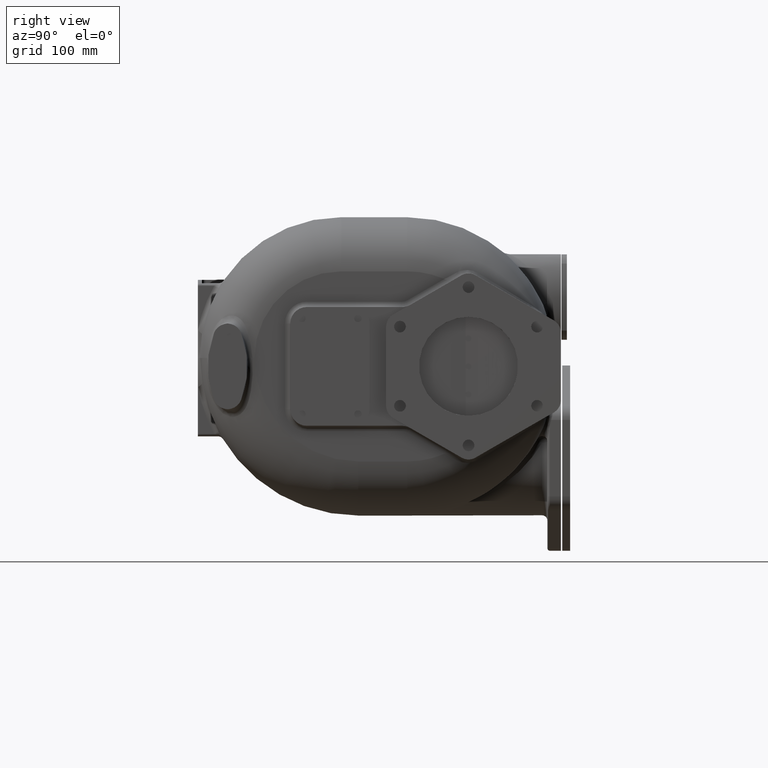
[diagram: clean part render]
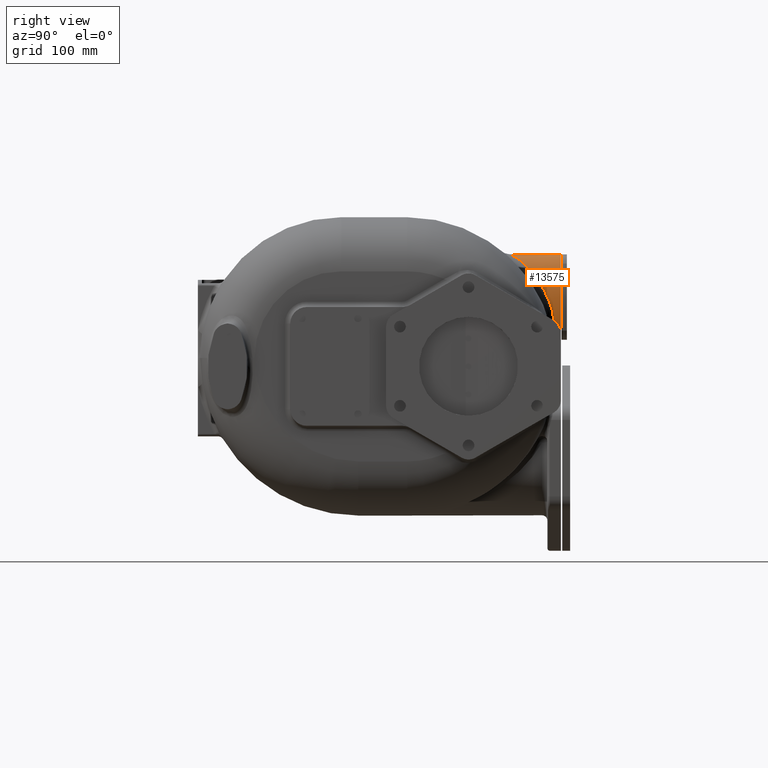
[diagram: same view with one face highlighted and labeled with its STEP entity id]
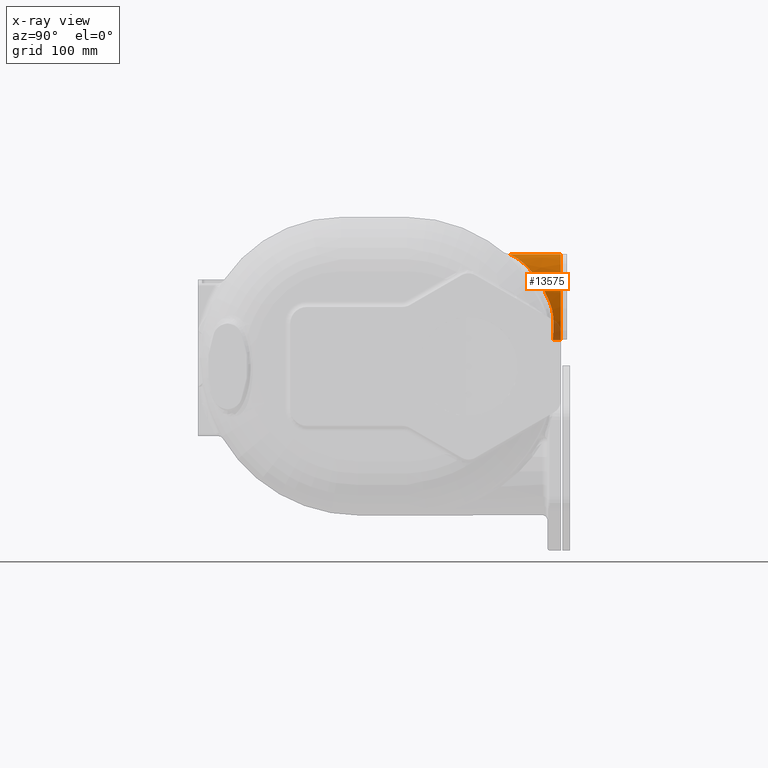
[diagram: x-ray of the same camera — body ghosted, the highlighted face saturated]
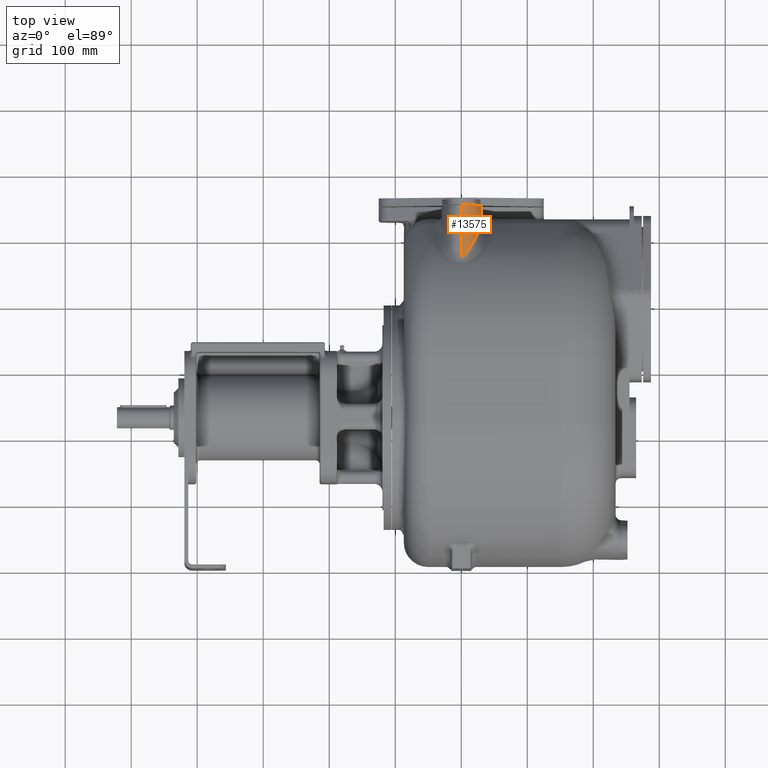
[diagram: same view with one face highlighted and labeled with its STEP entity id]
A machine part, right view. The second image highlights one B-rep face of the part: STEP entity #13575.
The next image is the same camera in x-ray: the body ghosted, the highlighted face saturated — about 8% of this face is hidden behind the body in this view.
A second angle (top view) of the same face is appended — the face is thin or edge-on in the first view.
In plain terms, the highlighted face is a SurfaceOfExtrusion surface.
Its self-contained STEP definition (entity closure, byte-faithful):
#4447=CARTESIAN_POINT('',(0.E0,4.718158125682E2,1.44E2));
#4448=CARTESIAN_POINT('',(6.756376490216E-2,4.718158124369E2,1.439999999580E2));
#4449=CARTESIAN_POINT('',(2.033282008203E-1,4.718183591415E2,1.439990104675E2));
#4450=CARTESIAN_POINT('',(4.087325313919E-1,4.718300258392E2,1.439944799828E2));
#4451=CARTESIAN_POINT('',(6.163152491117E-1,4.718497493316E2,1.439868067539E2));
#4452=CARTESIAN_POINT('',(8.262905902938E-1,4.718778232809E2,1.439758781207E2));
#4453=CARTESIAN_POINT('',(1.038914190687E0,4.719145388330E2,1.439615640587E2));
#4454=CARTESIAN_POINT('',(1.254283946355E0,4.719601513360E2,1.439437316834E2));
#4455=CARTESIAN_POINT('',(1.472931348248E0,4.720151474435E2,1.439221967651E2));
#4456=CARTESIAN_POINT('',(1.695882835025E0,4.720801205045E2,1.438966749751E2));
#4457=CARTESIAN_POINT('',(1.923930446268E0,4.721557709223E2,1.438668420235E2));
#4458=CARTESIAN_POINT('',(2.157836521586E0,4.722430268834E2,1.438323212215E2));
#4459=CARTESIAN_POINT('',(2.398337469331E0,4.723427302015E2,1.437926781436E2));
#4460=CARTESIAN_POINT('',(2.645974875746E0,4.724558786971E2,1.437474565674E2));
#4461=CARTESIAN_POINT('',(2.901901719361E0,4.725838807783E2,1.436960202802E2));
#4462=CARTESIAN_POINT('',(3.167129247236E0,4.727281065277E2,1.436376580232E2));
#4463=CARTESIAN_POINT('',(3.442583818511E0,4.728902269605E2,1.435715850213E2));
#4464=CARTESIAN_POINT('',(3.729776004711E0,4.730723492227E2,1.434967541310E2));
#4465=CARTESIAN_POINT('',(4.029790233032E0,4.732765063243E2,1.434120788311E2));
#4466=CARTESIAN_POINT('',(4.344064750916E0,4.735052664657E2,1.433162292795E2));
#4467=CARTESIAN_POINT('',(4.674498737615E0,4.737617729956E2,1.432075236196E2));
#4468=CARTESIAN_POINT('',(5.022469513653E0,4.740490370346E2,1.430842201951E2));
#4469=CARTESIAN_POINT('',(5.39010573E0,4.743709493209E2,1.429440549725E2));
#4470=CARTESIAN_POINT('',(5.779254023017E0,4.747316816197E2,1.427845368416E2));
#4471=CARTESIAN_POINT('',(6.191865904727E0,4.751354318372E2,1.426027806132E2));
#4472=CARTESIAN_POINT('',(6.629899995967E0,4.755872093604E2,1.423954885499E2));
#4473=CARTESIAN_POINT('',(7.095134040781E0,4.760915831038E2,1.421589857489E2));
#4474=CARTESIAN_POINT('',(7.588577578907E0,4.766529043852E2,1.418895423625E2));
#4475=CARTESIAN_POINT('',(8.111280677811E0,4.772752503646E2,1.415829477439E2));
#4476=CARTESIAN_POINT('',(8.662248745584E0,4.779603736378E2,1.412358349741E2));
#4477=CARTESIAN_POINT('',(9.240720849411E0,4.787097098602E2,1.408444874607E2));
#4478=CARTESIAN_POINT('',(9.843269483416E0,4.795208929066E2,1.404069668917E2));
#4479=CARTESIAN_POINT('',(1.046688365213E1,4.803910691562E2,1.399213402809E2));
#4480=CARTESIAN_POINT('',(1.110693313003E1,4.813146684813E2,1.393873601825E2));
#4481=CARTESIAN_POINT('',(1.175940214938E1,4.822858503643E2,1.388049684469E2));
#4482=CARTESIAN_POINT('',(1.242035771840E1,4.832986613217E2,1.381746770879E2));
#4483=CARTESIAN_POINT('',(1.308633664073E1,4.843470460115E2,1.374972412731E2));
#4484=CARTESIAN_POINT('',(1.375488888045E1,4.854266007572E2,1.367729332847E2));
#4485=CARTESIAN_POINT('',(1.442371071688E1,4.865328209830E2,1.360022884457E2));
#4486=CARTESIAN_POINT('',(1.509143832732E1,4.876629767070E2,1.351850886665E2));
#4487=CARTESIAN_POINT('',(1.575680893666E1,4.888145310750E2,1.343211467824E2));
#4488=CARTESIAN_POINT('',(1.641884251568E1,4.899855504336E2,1.334100378026E2));
#4489=CARTESIAN_POINT('',(1.707668383386E1,4.911745715744E2,1.324512165079E2));
#4490=CARTESIAN_POINT('',(1.772949143387E1,4.923800464947E2,1.314441411831E2));
#4491=CARTESIAN_POINT('',(1.837636730828E1,4.936007267032E2,1.303883845461E2));
#4492=CARTESIAN_POINT('',(1.901647620356E1,4.948352779599E2,1.292834375125E2));
#4493=CARTESIAN_POINT('',(1.964883643665E1,4.960823226504E2,1.281290621604E2));
#4494=CARTESIAN_POINT('',(2.027244258874E1,4.973404514980E2,1.269251256725E2));
#4495=CARTESIAN_POINT('',(2.088632258218E1,4.986082092988E2,1.256714804502E2));
#4496=CARTESIAN_POINT('',(2.148939542866E1,4.998841517251E2,1.243682615825E2));
#4497=CARTESIAN_POINT('',(2.208063228752E1,5.011667903455E2,1.230155769089E2));
#4498=CARTESIAN_POINT('',(2.265900047860E1,5.024546643327E2,1.216136047191E2));
#4499=CARTESIAN_POINT('',(2.322344092291E1,5.037463950407E2,1.201626627410E2));
#4500=CARTESIAN_POINT('',(2.377294556523E1,5.050405665333E2,1.186630039917E2));
#4501=CARTESIAN_POINT('',(2.430640589708E1,5.063356500185E2,1.171152237377E2));
#4502=CARTESIAN_POINT('',(2.482270037827E1,5.076301060293E2,1.155200863583E2));
#4503=CARTESIAN_POINT('',(2.532075187681E1,5.089223885229E2,1.138783400283E2));
#4504=CARTESIAN_POINT('',(2.579937914662E1,5.102107389476E2,1.121912284997E2));
#4505=CARTESIAN_POINT('',(2.625744725620E1,5.114934354830E2,1.104600658973E2));
#4506=CARTESIAN_POINT('',(2.669386624690E1,5.127687799047E2,1.086862147200E2));
#4507=CARTESIAN_POINT('',(2.710757434572E1,5.140351800847E2,1.068711474326E2));
#4508=CARTESIAN_POINT('',(2.749755358660E1,5.152910667053E2,1.050163767552E2));
#4509=CARTESIAN_POINT('',(2.786281806421E1,5.165349244508E2,1.031234923331E2));
#4510=CARTESIAN_POINT('',(2.820240821972E1,5.177653317568E2,1.011941974128E2));
#4511=CARTESIAN_POINT('',(2.851540809628E1,5.189809052060E2,9.923020452461E1));
#4512=CARTESIAN_POINT('',(2.880090550802E1,5.201802383633E2,9.723348763003E1));
#4513=CARTESIAN_POINT('',(2.905802320332E1,5.213619823549E2,9.520616178218E1));
#4514=CARTESIAN_POINT('',(2.928593341320E1,5.225248390608E2,9.315037489692E1));
#4515=CARTESIAN_POINT('',(2.948384217762E1,5.236675690440E2,9.106845413180E1));
#4516=CARTESIAN_POINT('',(2.965100810309E1,5.247890221709E2,8.896277273441E1));
#4517=CARTESIAN_POINT('',(2.978673317994E1,5.258880632554E2,8.683584541435E1));
#4518=CARTESIAN_POINT('',(2.989036135469E1,5.269635374986E2,8.469057196233E1));
#4519=CARTESIAN_POINT('',(2.996131337573E1,5.280143953685E2,8.252986471200E1));
#4520=CARTESIAN_POINT('',(2.999908061154E1,5.290396375581E2,8.035678830992E1));
#4521=CARTESIAN_POINT('',(3.000323419318E1,5.300383700543E2,7.817455549016E1));
#4522=CARTESIAN_POINT('',(2.997343347147E1,5.310097660367E2,7.598645565811E1));
#4523=CARTESIAN_POINT('',(2.990942190948E1,5.319531407630E2,7.379579073261E1));
#4524=CARTESIAN_POINT('',(2.984385310465E1,5.325628447371E2,7.233625141702E1));
#4525=CARTESIAN_POINT('',(2.980532409346E1,5.328629079811E2,7.160704387313E1));
#4527=DIRECTION('',(0.E0,-1.E0,0.E0));
#4528=VECTOR('',#4527,7.818418743185E1);
#4529=CARTESIAN_POINT('',(0.E0,5.5E2,1.44E2));
#4530=LINE('',#4529,#4528);
#4531=CARTESIAN_POINT('',(2.319218674766E1,5.388876650353E2,3.776938230357E1));
#4532=CARTESIAN_POINT('',(2.299738988521E1,5.388654287925E2,3.725499878757E1));
#4533=CARTESIAN_POINT('',(2.260480018373E1,5.388220768820E2,3.625053346129E1));
#4534=CARTESIAN_POINT('',(2.200902376357E1,5.387604548694E2,3.481586138864E1));
#4535=CARTESIAN_POINT('',(2.140780471819E1,5.387021913138E2,3.345086598165E1));
#4536=CARTESIAN_POINT('',(2.080273699607E1,5.386472577945E2,3.215377639563E1));
#4537=CARTESIAN_POINT('',(2.019537395823E1,5.385956195656E2,3.092284292193E1));
#4538=CARTESIAN_POINT('',(1.958726504705E1,5.385472206569E2,2.975639543103E1));
#4539=CARTESIAN_POINT('',(1.897967793570E1,5.385019824803E2,2.865231444673E1));
#4540=CARTESIAN_POINT('',(1.837363407062E1,5.384597976540E2,2.760820806244E1));
#4541=CARTESIAN_POINT('',(1.777010037703E1,5.384205558198E2,2.662177954427E1));
#4542=CARTESIAN_POINT('',(1.716991333245E1,5.383841317759E2,2.569069126513E1));
#4543=CARTESIAN_POINT('',(1.657381036117E1,5.383503931552E2,2.481262782899E1));
#4544=CARTESIAN_POINT('',(1.598242421378E1,5.383192076294E2,2.398529049440E1));
#4545=CARTESIAN_POINT('',(1.539630171191E1,5.382904277439E2,2.320642709342E1));
#4546=CARTESIAN_POINT('',(1.481587157085E1,5.382639142995E2,2.247379272520E1));
#4547=CARTESIAN_POINT('',(1.424148857933E1,5.382395239281E2,2.178521412717E1));
#4548=CARTESIAN_POINT('',(1.367345430502E1,5.382171110946E2,2.113860724672E1));
#4549=CARTESIAN_POINT('',(1.311193084737E1,5.381965428673E2,2.053188195003E1));
#4550=CARTESIAN_POINT('',(1.255707291433E1,5.381776798686E2,1.996309234773E1));
#4551=CARTESIAN_POINT('',(1.200894499046E1,5.381603949805E2,1.943033739563E1));
#4552=CARTESIAN_POINT('',(1.146750647710E1,5.381445664544E2,1.893175880884E1));
#4553=CARTESIAN_POINT('',(1.093278671384E1,5.381300753565E2,1.846569505413E1));
#4554=CARTESIAN_POINT('',(1.040466541653E1,5.381168175763E2,1.803047360700E1));
#4555=CARTESIAN_POINT('',(9.883030037384E0,5.381046881793E2,1.762455579330E1));
#4556=CARTESIAN_POINT('',(9.367776484845E0,5.380935952764E2,1.724651727332E1));
#4557=CARTESIAN_POINT('',(8.858657824601E0,5.380834532172E2,1.689493871776E1));
#4558=CARTESIAN_POINT('',(8.355533209999E0,5.380741799307E2,1.656858127574E1));
#4559=CARTESIAN_POINT('',(7.858154607882E0,5.380657067555E2,1.626622748593E1));
#4560=CARTESIAN_POINT('',(7.366254267707E0,5.380579644013E2,1.598674789455E1));
#4561=CARTESIAN_POINT('',(6.879629458743E0,5.380508953155E2,1.572913575753E1));
#4562=CARTESIAN_POINT('',(6.397938443340E0,5.380444459285E2,1.549239425507E1));
#4563=CARTESIAN_POINT('',(5.920939450033E0,5.380385664008E2,1.527566124370E1));
#4564=CARTESIAN_POINT('',(5.448320130244E0,5.380332164174E2,1.507811429559E1));
#4565=CARTESIAN_POINT('',(4.979744183392E0,5.380283553892E2,1.489899986830E1));
#4566=CARTESIAN_POINT('',(4.514949963998E0,5.380239519897E2,1.473766221591E1));
#4567=CARTESIAN_POINT('',(4.053566107700E0,5.380199763939E2,1.459347364914E1));
#4568=CARTESIAN_POINT('',(3.595294296524E0,5.380164033490E2,1.446589852658E1));
#4569=CARTESIAN_POINT('',(3.139782489322E0,5.380132126929E2,1.435444697568E1));
#4570=CARTESIAN_POINT('',(2.686673944413E0,5.380103854278E2,1.425869364076E1));
#4571=CARTESIAN_POINT('',(2.235670050262E0,5.380079094554E2,1.417828395489E1));
#4572=CARTESIAN_POINT('',(1.786404935761E0,5.380057728473E2,1.411290763250E1));
#4573=CARTESIAN_POINT('',(1.338559615965E0,5.380039692193E2,1.406231894447E1));
#4574=CARTESIAN_POINT('',(8.917709710936E-1,5.380024941982E2,1.402632299154E1));
#4575=CARTESIAN_POINT('',(4.457306473508E-1,5.380013464848E2,1.400478074074E1));
#4576=CARTESIAN_POINT('',(1.485181305467E-1,5.380008019634E2,1.400000023358E1));
#4577=CARTESIAN_POINT('',(0.E0,5.380005856711E2,1.4E1));
#4579=CARTESIAN_POINT('',(2.980532409346E1,5.328629079811E2,7.160704387313E1));
#4580=CARTESIAN_POINT('',(2.978087053508E1,5.330533475E2,7.114423709948E1));
#4581=CARTESIAN_POINT('',(2.972722505836E1,5.334249333217E2,7.021699412017E1));
#4582=CARTESIAN_POINT('',(2.963232938062E1,5.339545319867E2,6.882195431801E1));
#4583=CARTESIAN_POINT('',(2.952281426579E1,5.344563804847E2,6.742361238952E1));
#4584=CARTESIAN_POINT('',(2.939849455998E1,5.349305423961E2,6.602280319993E1));
#4585=CARTESIAN_POINT('',(2.925919405218E1,5.353771382215E2,6.462036661247E1));
#4586=CARTESIAN_POINT('',(2.910474446794E1,5.357962797665E2,6.321714159852E1));
#4587=CARTESIAN_POINT('',(2.893498930695E1,5.361881037007E2,6.181400272515E1));
#4588=CARTESIAN_POINT('',(2.874978689894E1,5.365527803038E2,6.041187034574E1));
#4589=CARTESIAN_POINT('',(2.854900502101E1,5.368904727866E2,5.901166161349E1));
#4590=CARTESIAN_POINT('',(2.833252633893E1,5.372013947873E2,5.761432957904E1));
#4591=CARTESIAN_POINT('',(2.810024813633E1,5.374857893993E2,5.622085031725E1));
#4592=CARTESIAN_POINT('',(2.785207837835E1,5.377438980825E2,5.483219898509E1));
#4593=CARTESIAN_POINT('',(2.758795544241E1,5.379760202802E2,5.344945126533E1));
#4594=CARTESIAN_POINT('',(2.730783695149E1,5.381824745593E2,5.207369923895E1));
#4595=CARTESIAN_POINT('',(2.701170059004E1,5.383635955137E2,5.070605451997E1));
#4596=CARTESIAN_POINT('',(2.669957313514E1,5.385197890038E2,4.934776293787E1));
#4597=CARTESIAN_POINT('',(2.637150599594E1,5.386514743209E2,4.800006756512E1));
#4598=CARTESIAN_POINT('',(2.602758133266E1,5.387591185813E2,4.666423290503E1));
#4599=CARTESIAN_POINT('',(2.566792380879E1,5.388432713859E2,4.534157462240E1));
#4600=CARTESIAN_POINT('',(2.529267563891E1,5.389044883868E2,4.403336121892E1));
#4601=CARTESIAN_POINT('',(2.490208360356E1,5.389433913198E2,4.274110212337E1));
#4602=CARTESIAN_POINT('',(2.449650177644E1,5.389606795708E2,4.146648580501E1));
#4603=CARTESIAN_POINT('',(2.407634412651E1,5.389570820473E2,4.021118382207E1));
#4604=CARTESIAN_POINT('',(2.364206940541E1,5.389334471590E2,3.897681638640E1));
#4605=CARTESIAN_POINT('',(2.334362673715E1,5.389049514722E2,3.816927853329E1));
#4606=CARTESIAN_POINT('',(2.319218674766E1,5.388876650353E2,3.776938230357E1));
#4686=CARTESIAN_POINT('',(0.E0,4.718158125682E2,1.44E2));
#4765=DIRECTION('',(0.E0,-1.E0,0.E0));
#4766=VECTOR('',#4765,1.199941432885E1);
#4767=CARTESIAN_POINT('',(0.E0,5.5E2,1.4E1));
#4768=LINE('',#4767,#4766);
#4769=CARTESIAN_POINT('',(0.E0,5.5E2,1.4E1));
#4815=CARTESIAN_POINT('',(0.E0,5.5E2,1.44E2));
#4817=CARTESIAN_POINT('',(0.E0,5.5E2,1.44E2));
#4818=CARTESIAN_POINT('',(8.838834764832E-1,5.5E2,1.44E2));
#4819=CARTESIAN_POINT('',(2.684190126438E0,5.5E2,1.438305457399E2));
#4820=CARTESIAN_POINT('',(5.453308164328E0,5.5E2,1.430155042695E2));
#4821=CARTESIAN_POINT('',(8.255926650434E0,5.5E2,1.415965308646E2));
#4822=CARTESIAN_POINT('',(1.105146390610E1,5.5E2,1.395439659650E2));
#4823=CARTESIAN_POINT('',(1.379526544630E1,5.5E2,1.368450426898E2));
#4824=CARTESIAN_POINT('',(1.644050105879E1,5.5E2,1.335066259393E2));
#4825=CARTESIAN_POINT('',(1.894048592789E1,5.5E2,1.295567029281E2));
#4826=CARTESIAN_POINT('',(2.125121798153E1,5.5E2,1.250443055024E2));
#4827=CARTESIAN_POINT('',(2.333386275958E1,5.5E2,1.200377197252E2));
#4828=CARTESIAN_POINT('',(2.515690474363E1,5.5E2,1.146210848926E2));
#4829=CARTESIAN_POINT('',(2.669771028524E1,5.5E2,1.088897445247E2));
#4830=CARTESIAN_POINT('',(2.794337534476E1,5.5E2,1.029448283005E2));
#4831=CARTESIAN_POINT('',(2.873279799660E1,5.5E2,9.789737055201E1));
#4832=CARTESIAN_POINT('',(2.921819477400E1,5.5E2,9.385161924112E1));
#4833=CARTESIAN_POINT('',(2.951075990075E1,5.5E2,9.082460364975E1));
#4834=CARTESIAN_POINT('',(2.973373193799E1,5.5E2,8.781555660062E1));
#4835=CARTESIAN_POINT('',(2.986347297932E1,5.5E2,8.533123671743E1));
#4836=CARTESIAN_POINT('',(2.993494402479E1,5.5E2,8.336227797855E1));
#4837=CARTESIAN_POINT('',(2.997274608621E1,5.5E2,8.189580441497E1));
#4838=CARTESIAN_POINT('',(2.999138837888E1,5.5E2,8.068330038545E1));
#4839=CARTESIAN_POINT('',(2.999877927320E1,5.5E2,7.971910745670E1));
#4840=CARTESIAN_POINT('',(3.000061036340E1,5.5E2,7.9E1));
#4841=CARTESIAN_POINT('',(2.999877927320E1,5.5E2,7.828089254330E1));
#4842=CARTESIAN_POINT('',(2.999138837888E1,5.5E2,7.731669961455E1));
#4843=CARTESIAN_POINT('',(2.997274608621E1,5.5E2,7.610419558503E1));
#4844=CARTESIAN_POINT('',(2.993494402479E1,5.5E2,7.463772202145E1));
#4845=CARTESIAN_POINT('',(2.986347297932E1,5.5E2,7.266876328257E1));
#4846=CARTESIAN_POINT('',(2.973373193799E1,5.5E2,7.018444339938E1));
#4847=CARTESIAN_POINT('',(2.951075990075E1,5.5E2,6.717539635025E1));
#4848=CARTESIAN_POINT('',(2.921819477400E1,5.5E2,6.414838075888E1));
#4849=CARTESIAN_POINT('',(2.873279799660E1,5.5E2,6.010262944799E1));
#4850=CARTESIAN_POINT('',(2.794337534476E1,5.5E2,5.505517169946E1));
#4851=CARTESIAN_POINT('',(2.669771028524E1,5.5E2,4.911025547532E1));
#4852=CARTESIAN_POINT('',(2.515690474363E1,5.5E2,4.337891510742E1));
#4853=CARTESIAN_POINT('',(2.333386275958E1,5.5E2,3.796228027481E1));
#4854=CARTESIAN_POINT('',(2.125121798153E1,5.5E2,3.295569449764E1));
#4855=CARTESIAN_POINT('',(1.894048592789E1,5.5E2,2.844329707188E1));
#4856=CARTESIAN_POINT('',(1.644050105879E1,5.5E2,2.449337406067E1));
#4857=CARTESIAN_POINT('',(1.379526544630E1,5.5E2,2.115495731018E1));
#4858=CARTESIAN_POINT('',(1.105146390610E1,5.5E2,1.845603403502E1));
#4859=CARTESIAN_POINT('',(8.255926650434E0,5.5E2,1.640346913538E1));
#4860=CARTESIAN_POINT('',(5.453308164328E0,5.5E2,1.498449573050E1));
#4861=CARTESIAN_POINT('',(2.684190126438E0,5.5E2,1.416945426014E1));
#4862=CARTESIAN_POINT('',(8.838834764832E-1,5.5E2,1.4E1));
#4863=CARTESIAN_POINT('',(0.E0,5.5E2,1.4E1));
#7735=VERTEX_POINT('',#4769);
#7736=VERTEX_POINT('',#4815);
#7740=VERTEX_POINT('',#4686);
#7742=VERTEX_POINT('',#4525);
#7743=CARTESIAN_POINT('',(0.E0,5.380005856711E2,1.4E1));
#7744=VERTEX_POINT('',#7743);
#7836=VERTEX_POINT('',#4606);
#13556=CARTESIAN_POINT('',(0.E0,5.5E2,7.9E1));
#13557=DIRECTION('',(0.E0,1.E0,0.E0));
#13558=DIRECTION('',(0.E0,0.E0,-1.E0));
#13559=AXIS2_PLACEMENT_3D('',#13556,#13557,#13558);
#13561=DIRECTION('',(0.E0,1.E0,0.E0));
#13562=VECTOR('',#13561,1.E0);
#13563=SURFACE_OF_LINEAR_EXTRUSION('',#13560,#13562);
#13564=ORIENTED_EDGE('',*,*,#13550,.F.);
#13566=ORIENTED_EDGE('',*,*,#13565,.F.);
#13568=ORIENTED_EDGE('',*,*,#13567,.T.);
#13570=ORIENTED_EDGE('',*,*,#13569,.T.);
#13571=ORIENTED_EDGE('',*,*,#13234,.F.);
#13572=ORIENTED_EDGE('',*,*,#13301,.F.);
#13573=EDGE_LOOP('',(#13564,#13566,#13568,#13570,#13571,#13572));
#13574=FACE_OUTER_BOUND('',#13573,.F.);
#13575=ADVANCED_FACE('',(#13574),#13563,.T.);
#4526=B_SPLINE_CURVE_WITH_KNOTS('',3,(#4447,#4448,#4449,#4450,#4451,#4452,#4453,
#4454,#4455,#4456,#4457,#4458,#4459,#4460,#4461,#4462,#4463,#4464,#4465,#4466,
#4467,#4468,#4469,#4470,#4471,#4472,#4473,#4474,#4475,#4476,#4477,#4478,#4479,
#4480,#4481,#4482,#4483,#4484,#4485,#4486,#4487,#4488,#4489,#4490,#4491,#4492,
#4493,#4494,#4495,#4496,#4497,#4498,#4499,#4500,#4501,#4502,#4503,#4504,#4505,
#4506,#4507,#4508,#4509,#4510,#4511,#4512,#4513,#4514,#4515,#4516,#4517,#4518,
#4519,#4520,#4521,#4522,#4523,#4524,#4525),.UNSPECIFIED.,.F.,.F.,(4,1,1,1,1,1,1,
1,1,1,1,1,1,1,1,1,1,1,1,1,1,1,1,1,1,1,1,1,1,1,1,1,1,1,1,1,1,1,1,1,1,1,1,1,1,1,1,
1,1,1,1,1,1,1,1,1,1,1,1,1,1,1,1,1,1,1,1,1,1,1,1,1,1,1,1,1,4),(0.E0,
1.315789473684E-2,2.631578947368E-2,3.947368421053E-2,5.263157894737E-2,
6.578947368421E-2,7.894736842105E-2,9.210526315789E-2,1.052631578947E-1,
1.184210526316E-1,1.315789473684E-1,1.447368421053E-1,1.578947368421E-1,
1.710526315789E-1,1.842105263158E-1,1.973684210526E-1,2.105263157895E-1,
2.236842105263E-1,2.368421052632E-1,2.5E-1,2.631578947368E-1,2.763157894737E-1,
2.894736842105E-1,3.026315789474E-1,3.157894736842E-1,3.289473684211E-1,
3.421052631579E-1,3.552631578947E-1,3.684210526316E-1,3.815789473684E-1,
3.947368421053E-1,4.078947368421E-1,4.210526315789E-1,4.342105263158E-1,
4.473684210526E-1,4.605263157895E-1,4.736842105263E-1,4.868421052632E-1,5.E-1,
5.131578947368E-1,5.263157894737E-1,5.394736842105E-1,5.526315789474E-1,
5.657894736842E-1,5.789473684211E-1,5.921052631579E-1,6.052631578947E-1,
6.184210526316E-1,6.315789473684E-1,6.447368421053E-1,6.578947368421E-1,
6.710526315789E-1,6.842105263158E-1,6.973684210526E-1,7.105263157895E-1,
7.236842105263E-1,7.368421052632E-1,7.5E-1,7.631578947368E-1,7.763157894737E-1,
7.894736842105E-1,8.026315789474E-1,8.157894736842E-1,8.289473684211E-1,
8.421052631579E-1,8.552631578947E-1,8.684210526316E-1,8.815789473684E-1,
8.947368421053E-1,9.078947368421E-1,9.210526315789E-1,9.342105263158E-1,
9.473684210526E-1,9.605263157895E-1,9.736842105263E-1,9.868421052632E-1,1.E0),
.UNSPECIFIED.);
#4578=B_SPLINE_CURVE_WITH_KNOTS('',3,(#4531,#4532,#4533,#4534,#4535,#4536,#4537,
#4538,#4539,#4540,#4541,#4542,#4543,#4544,#4545,#4546,#4547,#4548,#4549,#4550,
#4551,#4552,#4553,#4554,#4555,#4556,#4557,#4558,#4559,#4560,#4561,#4562,#4563,
#4564,#4565,#4566,#4567,#4568,#4569,#4570,#4571,#4572,#4573,#4574,#4575,#4576,
#4577),.UNSPECIFIED.,.F.,.F.,(4,1,1,1,1,1,1,1,1,1,1,1,1,1,1,1,1,1,1,1,1,1,1,1,1,
1,1,1,1,1,1,1,1,1,1,1,1,1,1,1,1,1,1,1,4),(0.E0,2.272727272727E-2,
4.545454545455E-2,6.818181818182E-2,9.090909090909E-2,1.136363636364E-1,
1.363636363636E-1,1.590909090909E-1,1.818181818182E-1,2.045454545455E-1,
2.272727272727E-1,2.5E-1,2.727272727273E-1,2.954545454545E-1,3.181818181818E-1,
3.409090909091E-1,3.636363636364E-1,3.863636363636E-1,4.090909090909E-1,
4.318181818182E-1,4.545454545455E-1,4.772727272727E-1,5.E-1,5.227272727273E-1,
5.454545454545E-1,5.681818181818E-1,5.909090909091E-1,6.136363636364E-1,
6.363636363636E-1,6.590909090909E-1,6.818181818182E-1,7.045454545455E-1,
7.272727272727E-1,7.5E-1,7.727272727273E-1,7.954545454545E-1,8.181818181818E-1,
8.409090909091E-1,8.636363636364E-1,8.863636363636E-1,9.090909090909E-1,
9.318181818182E-1,9.545454545455E-1,9.772727272727E-1,1.E0),.UNSPECIFIED.);
#4607=B_SPLINE_CURVE_WITH_KNOTS('',3,(#4579,#4580,#4581,#4582,#4583,#4584,#4585,
#4586,#4587,#4588,#4589,#4590,#4591,#4592,#4593,#4594,#4595,#4596,#4597,#4598,
#4599,#4600,#4601,#4602,#4603,#4604,#4605,#4606),.UNSPECIFIED.,.F.,.F.,(4,1,1,1,
1,1,1,1,1,1,1,1,1,1,1,1,1,1,1,1,1,1,1,1,1,4),(0.E0,4.E-2,8.E-2,1.2E-1,1.6E-1,
2.E-1,2.4E-1,2.8E-1,3.2E-1,3.6E-1,4.E-1,4.4E-1,4.8E-1,5.2E-1,5.6E-1,6.E-1,
6.4E-1,6.8E-1,7.2E-1,7.6E-1,8.E-1,8.4E-1,8.8E-1,9.2E-1,9.6E-1,1.E0),
.UNSPECIFIED.);
#4864=B_SPLINE_CURVE_WITH_KNOTS('',3,(#4817,#4818,#4819,#4820,#4821,#4822,#4823,
#4824,#4825,#4826,#4827,#4828,#4829,#4830,#4831,#4832,#4833,#4834,#4835,#4836,
#4837,#4838,#4839,#4840,#4841,#4842,#4843,#4844,#4845,#4846,#4847,#4848,#4849,
#4850,#4851,#4852,#4853,#4854,#4855,#4856,#4857,#4858,#4859,#4860,#4861,#4862,
#4863),.UNSPECIFIED.,.F.,.F.,(4,1,1,1,1,1,1,1,1,1,1,1,1,1,1,1,1,1,1,1,1,1,1,1,1,
1,1,1,1,1,1,1,1,1,1,1,1,1,1,1,1,1,1,1,4),(0.E0,3.125E-2,6.25E-2,9.375E-2,
1.25E-1,1.5625E-1,1.875E-1,2.1875E-1,2.5E-1,2.8125E-1,3.125E-1,3.4375E-1,
3.75E-1,4.0625E-1,4.21875E-1,4.375E-1,4.53125E-1,4.6875E-1,4.765625E-1,
4.84375E-1,4.921875E-1,4.9609375E-1,5.E-1,5.0390625E-1,5.078125E-1,5.15625E-1,
5.234375E-1,5.3125E-1,5.46875E-1,5.625E-1,5.78125E-1,5.9375E-1,6.25E-1,
6.5625E-1,6.875E-1,7.1875E-1,7.5E-1,7.8125E-1,8.125E-1,8.4375E-1,8.75E-1,
9.0625E-1,9.375E-1,9.6875E-1,1.E0),.UNSPECIFIED.);
#13234=EDGE_CURVE('',#7836,#7744,#4578,.T.);
#13301=EDGE_CURVE('',#7742,#7836,#4607,.T.);
#13550=EDGE_CURVE('',#7740,#7742,#4526,.T.);
#13560=ELLIPSE('',#13559,6.5E1,3.E1);
#13565=EDGE_CURVE('',#7736,#7740,#4530,.T.);
#13567=EDGE_CURVE('',#7736,#7735,#4864,.T.);
#13569=EDGE_CURVE('',#7735,#7744,#4768,.T.);